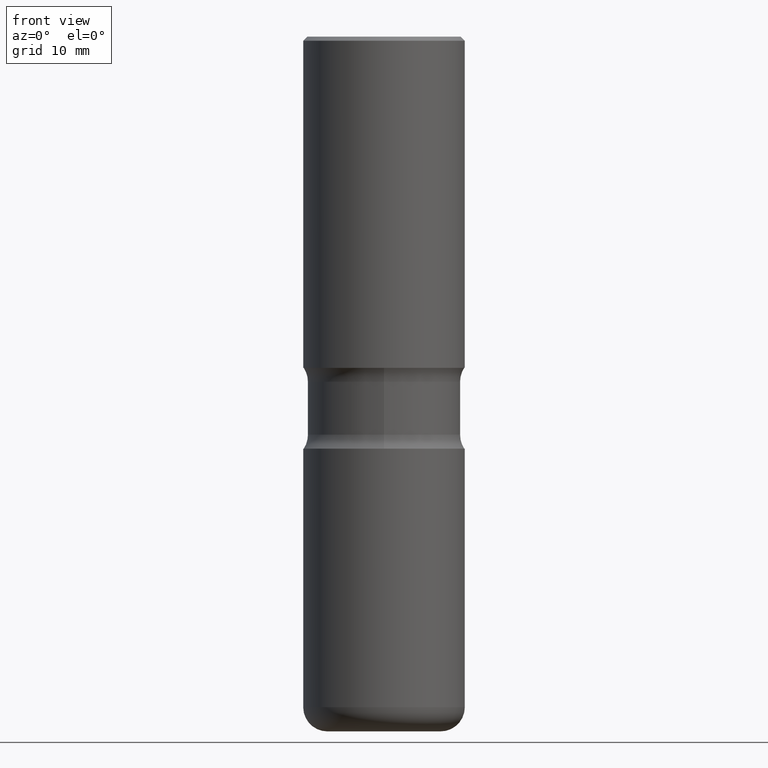
[diagram: clean part render]
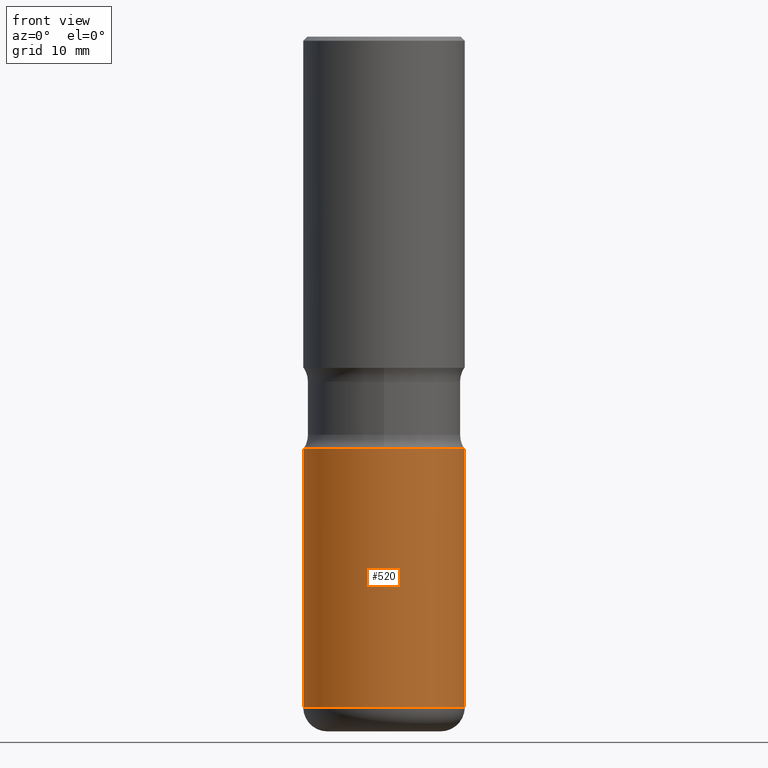
[diagram: same view with one face highlighted and labeled with its STEP entity id]
A machine part, front view. The second image highlights one B-rep face of the part: STEP entity #520.
In plain terms, the highlighted cylindrical surface (partial cylindrical patch) has radius 10 mm, axis along (-0, 0, 1).
Its self-contained STEP definition (entity closure, byte-faithful):
#4 = VECTOR ( 'NONE', #124, 39.37007874015748143 ) ;
#5 = CARTESIAN_POINT ( 'NONE',  ( -0.3937000000000004385, 2.797406750687517547E-15, -1.936584745033358417E-29 ) ) ;
#15 = DIRECTION ( 'NONE',  ( -2.445468806185136877E-29, 3.491481338843145188E-15, 1.000000000000000000 ) ) ;
#26 = ORIENTED_EDGE ( 'NONE', *, *, #343, .T. ) ;
#39 = FACE_OUTER_BOUND ( 'NONE', #476, .T. ) ;
#41 = AXIS2_PLACEMENT_3D ( 'NONE', #351, #519, #444 ) ;
#44 = VERTEX_POINT ( 'NONE', #331 ) ;
#76 = VERTEX_POINT ( 'NONE', #112 ) ;
#82 = ORIENTED_EDGE ( 'NONE', *, *, #183, .F. ) ;
#89 = VERTEX_POINT ( 'NONE', #464 ) ;
#91 = ORIENTED_EDGE ( 'NONE', *, *, #506, .F. ) ;
#112 = CARTESIAN_POINT ( 'NONE',  ( 0.3937000000000003830, -9.759388638334355360E-15, -2.007800000000000473 ) ) ;
#113 = AXIS2_PLACEMENT_3D ( 'NONE', #452, #188, #406 ) ;
#124 = DIRECTION ( 'NONE',  ( -2.445468806185136877E-29, 3.491481338843145188E-15, 1.000000000000000000 ) ) ;
#137 = LINE ( 'NONE', #402, #501 ) ;
#149 = DIRECTION ( 'NONE',  ( -2.445468806185136597E-29, 3.491481338843145583E-15, 1.000000000000000000 ) ) ;
#183 = EDGE_CURVE ( 'NONE', #44, #76, #420, .T. ) ;
#188 = DIRECTION ( 'NONE',  ( -2.445468806185136597E-29, 3.491481338843145583E-15, 1.000000000000000000 ) ) ;
#208 = CYLINDRICAL_SURFACE ( 'NONE', #41, 0.3937000000000004385 ) ;
#220 = EDGE_CURVE ( 'NONE', #89, #76, #137, .T. ) ;
#258 = AXIS2_PLACEMENT_3D ( 'NONE', #454, #149, #465 ) ;
#320 = CIRCLE ( 'NONE', #258, 0.3937000000000004940 ) ;
#331 = CARTESIAN_POINT ( 'NONE',  ( -0.3937000000000003830, -6.412248150845989772E-15, -2.007800000000000473 ) ) ;
#343 = EDGE_CURVE ( 'NONE', #364, #89, #320, .T. ) ;
#351 = CARTESIAN_POINT ( 'NONE',  ( 0.000000000000000000, 0.000000000000000000, 0.000000000000000000 ) ) ;
#364 = VERTEX_POINT ( 'NONE', #545 ) ;
#368 = ORIENTED_EDGE ( 'NONE', *, *, #220, .T. ) ;
#394 = LINE ( 'NONE', #5, #4 ) ;
#402 = CARTESIAN_POINT ( 'NONE',  ( 0.3937000000000004385, -2.749192406205086372E-15, 1.919750796630862133E-29 ) ) ;
#406 = DIRECTION ( 'NONE',  ( 1.000000000000000000, -6.982962677686269077E-15, 0.000000000000000000 ) ) ;
#420 = CIRCLE ( 'NONE', #113, 0.3937000000000003830 ) ;
#444 = DIRECTION ( 'NONE',  ( 1.000000000000000000, -6.982962677686266711E-15, 4.876176775795935793E-29 ) ) ;
#452 = CARTESIAN_POINT ( 'NONE',  ( 4.910012269058518206E-29, -7.010196232129268988E-15, -2.007800000000000473 ) ) ;
#454 = CARTESIAN_POINT ( 'NONE',  ( 7.991058417971169471E-29, -1.140911357093774486E-14, -3.267699999999999605 ) ) ;
#464 = CARTESIAN_POINT ( 'NONE',  ( 0.3937000000000004940, -1.415830597714283123E-14, -3.267699999999999605 ) ) ;
#465 = DIRECTION ( 'NONE',  ( 1.000000000000000000, -6.982962677686269866E-15, 0.000000000000000000 ) ) ;
#476 = EDGE_LOOP ( 'NONE', ( #91, #26, #368, #82 ) ) ;
#501 = VECTOR ( 'NONE', #15, 39.37007874015748143 ) ;
#506 = EDGE_CURVE ( 'NONE', #364, #44, #394, .T. ) ;
#519 = DIRECTION ( 'NONE',  ( -2.445468806185136597E-29, 3.491481338843145583E-15, 1.000000000000000000 ) ) ;
#520 = ADVANCED_FACE ( 'NONE', ( #39 ), #208, .T. ) ;
#545 = CARTESIAN_POINT ( 'NONE',  ( -0.3937000000000004940, -8.611706820250227710E-15, -3.267699999999999605 ) ) ;